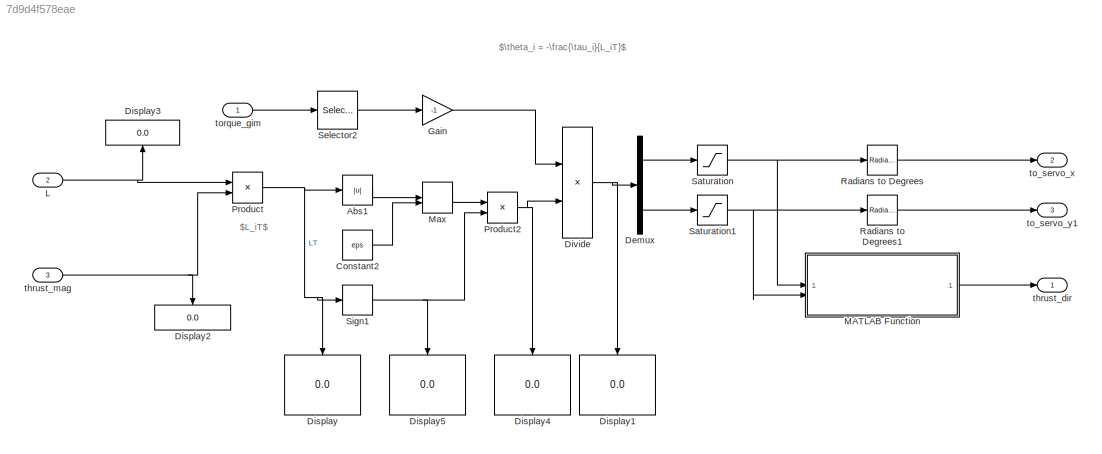
MODEL slx_7d9d4f578eae
KIND model
CONFIG AbsTol = auto
CONFIG EnableMultiTasking = off
CONFIG FixedStep = 0.001
CONFIG MaxStep = auto
CONFIG MinStep = auto
CONFIG RelTol = 1e-3
CONFIG SampleTimeConstraint = Unconstrained
CONFIG SolverName = FixedStepAuto
CONFIG StartTime = 0.0
CONFIG StopTime = 10.0
BLOCK [Abs] Abs1
  SaturateOnIntegerOverflow = off
BLOCK [Constant] Constant2
  Value = eps
BLOCK [Demux] Demux
  Outputs = 2
BLOCK [Display] Display
  Decimation = 1
  NameLocation = left
BLOCK [Display] Display1
  Decimation = 1
  NameLocation = left
BLOCK [Display] Display2
  Decimation = 1
  NameLocation = left
BLOCK [Display] Display3
  Decimation = 1
  NameLocation = right
BLOCK [Display] Display4
  Decimation = 1
  NameLocation = left
BLOCK [Display] Display5
  Decimation = 1
  NameLocation = left
BLOCK [Product] Divide
  Inputs = */
BLOCK [Gain] Gain
  Gain = -1
BLOCK [Inport] L
  Port = 2
  PortDimensions = 1
  Unit = m
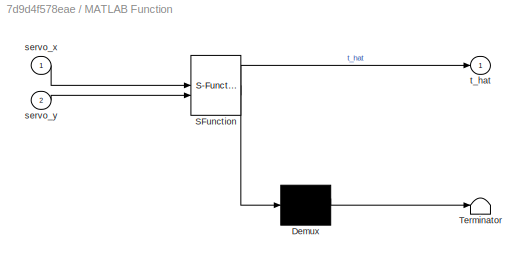
BLOCK [SubSystem] MATLAB Function
  ErrorFcn = Stateflow.Translate.translate
  PermitHierarchicalResolution = ExplicitOnly
  SFBlockType = MATLAB Function
  TreatAsAtomicUnit = on
BLOCK [Demux] MATLAB Function/ Demux 
  Outputs = 1
BLOCK [S-Function] MATLAB Function/ SFunction 
  EnableBusSupport = off
  FunctionName = sf_sfun
  PortCounts = [2 2]
  SFcnIsStateOwnerBlock = off
  SFunctionDeploymentMode = off
  Tag = Stateflow S-Function 2
BLOCK [Terminator] MATLAB Function/ Terminator 
BLOCK [Inport] MATLAB Function/servo_x
BLOCK [Inport] MATLAB Function/servo_y
  Port = 2
BLOCK [Outport] MATLAB Function/t_hat
BLOCK [MinMax] Max
  Function = max
  Inputs = 2
BLOCK [Product] Product
BLOCK [Product] Product2
BLOCK [Reference] Radians to Degrees  REF=simulink_extras/Transformations/Radians
to Degrees
  SourceBlock = simulink_extras/Transformations/Radians\nto Degrees
  SourceType = RadiansToDegrees
BLOCK [Reference] Radians to Degrees1  REF=simulink_extras/Transformations/Radians
to Degrees
  SourceBlock = simulink_extras/Transformations/Radians\nto Degrees
  SourceType = RadiansToDegrees
BLOCK [Saturate] Saturation
  LowerLimit = deg2rad(-15)
  UpperLimit = deg2rad(15)
BLOCK [Saturate] Saturation1
  LowerLimit = deg2rad(-15)
  UpperLimit = deg2rad(15)
BLOCK [Selector] Selector2
  IndexOptions = Index vector (dialog)
  Indices = [1 2]
  InputPortWidth = 3
  OutputSizes = 1
BLOCK [Signum] Sign1
BLOCK [Outport] thrust_dir
BLOCK [Inport] thrust_mag
  Port = 3
  PortDimensions = 1
  Unit = N
BLOCK [Outport] to_servo_x
  Port = 2
  PortDimensions = 1
  Unit = deg
BLOCK [Outport] to_servo_y1
  Port = 3
  PortDimensions = 1
  Unit = deg
BLOCK [Inport] torque_gim
  PortDimensions = 3
  Unit = N*m
ANNOTATION (root): $L_iT$
ANNOTATION (root): $\theta_i = -\frac{\tau_i}{L_iT}$
LINE Abs1:1 -> Max:1
LINE Constant2:1 -> Max:2
LINE Demux:1 -> Saturation:1
LINE Demux:2 -> Saturation1:1
NET Divide:1 -> Demux:1, Display1:1
LINE Gain:1 -> Divide:1
NET L:1 -> Display3:1, Product:1
LINE MATLAB Function:1 -> thrust_dir:1
LINE Max:1 -> Product2:1
NET Product2:1 -> Display4:1, Divide:2
NET Product:1 -> Abs1:1, Display:1, Sign1:1
LINE Radians to Degrees1:1 -> to_servo_y1:1
LINE Radians to Degrees:1 -> to_servo_x:1
NET Saturation1:1 -> MATLAB Function:2, Radians to Degrees1:1
NET Saturation:1 -> MATLAB Function:1, Radians to Degrees:1
LINE Selector2:1 -> Gain:1
NET Sign1:1 -> Display5:1, Product2:2
NET thrust_mag:1 -> Display2:1, Product:2
LINE torque_gim:1 -> Selector2:1
note: NET lines group one-source signal fan-out (src -> all destinations, sorted); 1:1 wires keep LINE
CHART MATLAB Function states=1 transitions=1
  STATE_LABEL 'eML_blk_kernel()'
  STATE_LABEL 'SCRIPT:\nfunction t_hat = get_thrust_dir(servo_x, servo_y)\n\nt_x = -servo_y;\nt_y = servo_x;\nt_z = -1 + (servo_x^2+servo_y^2)/2;\n\nt_hat = [t_x; t_y; t_z];'
CHART  states=0 transitions=0
